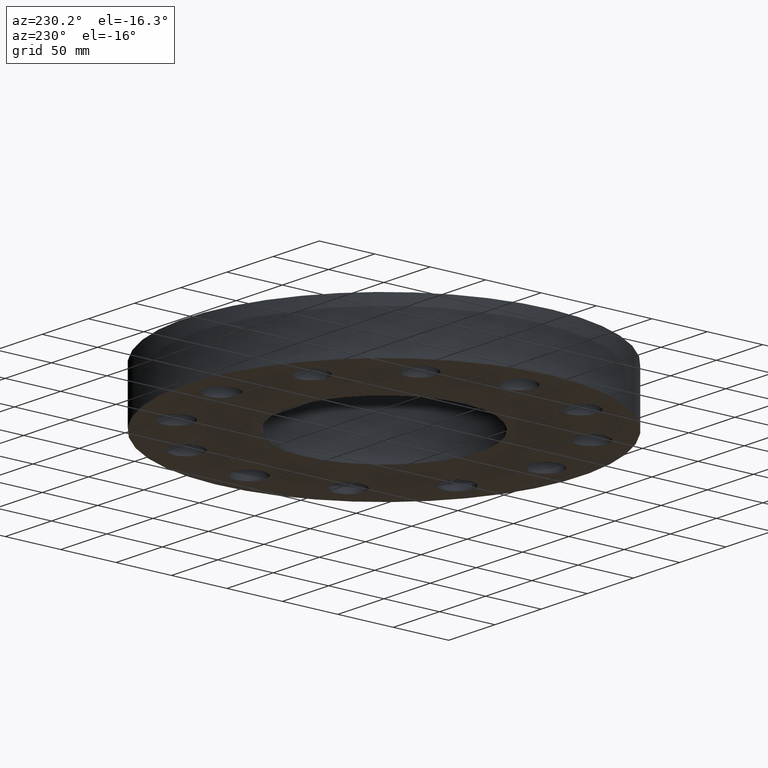
[diagram: clean part render]
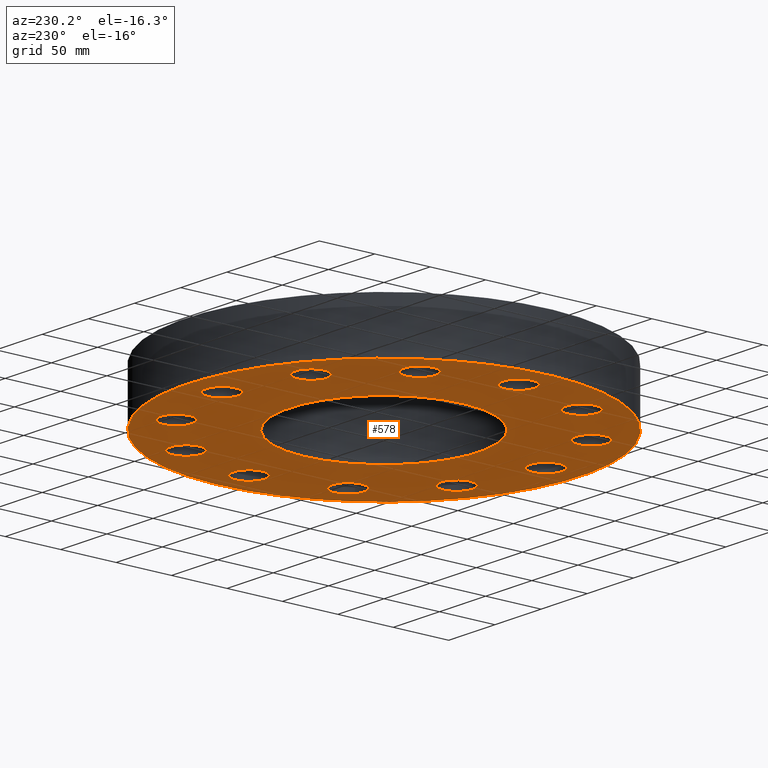
[diagram: same view with one face highlighted and labeled with its STEP entity id]
A machine part, auxiliary view. The second image highlights one B-rep face of the part: STEP entity #578.
In plain terms, the highlighted planar face has unit normal (0, 0, -1).
Its self-contained STEP definition (entity closure, byte-faithful):
#51=AXIS2_PLACEMENT_3D('Circle Axis2P3D',#49,#50,$) ;
#77=AXIS2_PLACEMENT_3D('Circle Axis2P3D',#75,#76,$) ;
#99=AXIS2_PLACEMENT_3D('Circle Axis2P3D',#97,#98,$) ;
#134=AXIS2_PLACEMENT_3D('Circle Axis2P3D',#132,#133,$) ;
#334=AXIS2_PLACEMENT_3D('Circle Axis2P3D',#332,#333,$) ;
#353=AXIS2_PLACEMENT_3D('Circle Axis2P3D',#351,#352,$) ;
#366=AXIS2_PLACEMENT_3D('Plane Axis2P3D',#363,#364,#365) ;
#382=AXIS2_PLACEMENT_3D('Circle Axis2P3D',#380,#381,$) ;
#391=AXIS2_PLACEMENT_3D('Circle Axis2P3D',#389,#390,$) ;
#400=AXIS2_PLACEMENT_3D('Circle Axis2P3D',#398,#399,$) ;
#409=AXIS2_PLACEMENT_3D('Circle Axis2P3D',#407,#408,$) ;
#418=AXIS2_PLACEMENT_3D('Circle Axis2P3D',#416,#417,$) ;
#427=AXIS2_PLACEMENT_3D('Circle Axis2P3D',#425,#426,$) ;
#436=AXIS2_PLACEMENT_3D('Circle Axis2P3D',#434,#435,$) ;
#445=AXIS2_PLACEMENT_3D('Circle Axis2P3D',#443,#444,$) ;
#454=AXIS2_PLACEMENT_3D('Circle Axis2P3D',#452,#453,$) ;
#463=AXIS2_PLACEMENT_3D('Circle Axis2P3D',#461,#462,$) ;
#472=AXIS2_PLACEMENT_3D('Circle Axis2P3D',#470,#471,$) ;
#481=AXIS2_PLACEMENT_3D('Circle Axis2P3D',#479,#480,$) ;
#490=AXIS2_PLACEMENT_3D('Circle Axis2P3D',#488,#489,$) ;
#499=AXIS2_PLACEMENT_3D('Circle Axis2P3D',#497,#498,$) ;
#508=AXIS2_PLACEMENT_3D('Circle Axis2P3D',#506,#507,$) ;
#517=AXIS2_PLACEMENT_3D('Circle Axis2P3D',#515,#516,$) ;
#526=AXIS2_PLACEMENT_3D('Circle Axis2P3D',#524,#525,$) ;
#535=AXIS2_PLACEMENT_3D('Circle Axis2P3D',#533,#534,$) ;
#544=AXIS2_PLACEMENT_3D('Circle Axis2P3D',#542,#543,$) ;
#553=AXIS2_PLACEMENT_3D('Circle Axis2P3D',#551,#552,$) ;
#562=AXIS2_PLACEMENT_3D('Circle Axis2P3D',#560,#561,$) ;
#571=AXIS2_PLACEMENT_3D('Circle Axis2P3D',#569,#570,$) ;
#44=CARTESIAN_POINT('Vertex',(5.25855376536,0.268478301619,0.)) ;
#49=CARTESIAN_POINT('Axis2P3D Location',(5.75000000002,0.,0.)) ;
#53=CARTESIAN_POINT('Vertex',(6.24144623468,-0.268478301619,0.)) ;
#75=CARTESIAN_POINT('Axis2P3D Location',(5.75000000002,0.,0.)) ;
#97=CARTESIAN_POINT('Axis2P3D Location',(0.,0.,8.39223703654E-016)) ;
#101=CARTESIAN_POINT('Vertex',(-3.35597877024,-6.14307793326,8.39223703654E-016)) ;
#103=CARTESIAN_POINT('Vertex',(3.35597877024,6.14307793326,8.39223703654E-016)) ;
#132=CARTESIAN_POINT('Axis2P3D Location',(0.,0.,8.39223703654E-016)) ;
#329=CARTESIAN_POINT('Vertex',(-1.61086980972,-2.94867740796,-9.23146074019E-015)) ;
#332=CARTESIAN_POINT('Axis2P3D Location',(0.,0.,-9.51120197474E-015)) ;
#336=CARTESIAN_POINT('Vertex',(1.61086980972,2.94867740796,-9.23146074019E-015)) ;
#351=CARTESIAN_POINT('Axis2P3D Location',(0.,0.,-9.51120197474E-015)) ;
#363=CARTESIAN_POINT('Axis2P3D Location',(0.,3.36000000001,0.)) ;
#380=CARTESIAN_POINT('Axis2P3D Location',(4.97964607178,-2.87500000001,0.)) ;
#384=CARTESIAN_POINT('Vertex',(4.68828029878,-2.39676785311,0.)) ;
#386=CARTESIAN_POINT('Vertex',(5.27101184478,-3.35323214691,0.)) ;
#389=CARTESIAN_POINT('Axis2P3D Location',(4.97964607178,-2.87500000001,0.)) ;
#398=CARTESIAN_POINT('Axis2P3D Location',(2.87500000001,-4.97964607178,0.)) ;
#402=CARTESIAN_POINT('Vertex',(2.86178591225,-4.41980199716,0.)) ;
#404=CARTESIAN_POINT('Vertex',(2.88821408777,-5.5394901464,0.)) ;
#407=CARTESIAN_POINT('Axis2P3D Location',(2.87500000001,-4.97964607178,0.)) ;
#416=CARTESIAN_POINT('Axis2P3D Location',(-1.81831802458E-015,-5.75000000002,0.)) ;
#420=CARTESIAN_POINT('Vertex',(0.268478301619,-5.25855376536,0.)) ;
#422=CARTESIAN_POINT('Vertex',(-0.268478301619,-6.24144623468,0.)) ;
#425=CARTESIAN_POINT('Axis2P3D Location',(-6.99353086378E-016,-5.75000000002,0.)) ;
#434=CARTESIAN_POINT('Axis2P3D Location',(-2.87500000001,-4.97964607178,0.)) ;
#438=CARTESIAN_POINT('Vertex',(-2.39676785311,-4.68828029878,0.)) ;
#440=CARTESIAN_POINT('Vertex',(-3.35323214691,-5.27101184478,-1.67844740731E-015)) ;
#443=CARTESIAN_POINT('Axis2P3D Location',(-2.87500000001,-4.97964607178,0.)) ;
#452=CARTESIAN_POINT('Axis2P3D Location',(-4.97964607178,-2.87500000001,0.)) ;
#456=CARTESIAN_POINT('Vertex',(-4.41980199716,-2.86178591225,0.)) ;
#458=CARTESIAN_POINT('Vertex',(-5.5394901464,-2.88821408777,0.)) ;
#461=CARTESIAN_POINT('Axis2P3D Location',(-4.97964607178,-2.87500000001,0.)) ;
#470=CARTESIAN_POINT('Axis2P3D Location',(-5.75000000002,-1.1189649382E-015,0.)) ;
#474=CARTESIAN_POINT('Vertex',(-5.25855376536,-0.268478301619,0.)) ;
#476=CARTESIAN_POINT('Vertex',(-6.24144623468,0.268478301619,0.)) ;
#479=CARTESIAN_POINT('Axis2P3D Location',(-5.75000000002,-5.59482469102E-016,0.)) ;
#488=CARTESIAN_POINT('Axis2P3D Location',(-4.97964607178,2.87500000001,0.)) ;
#492=CARTESIAN_POINT('Vertex',(-4.68828029878,2.39676785311,0.)) ;
#494=CARTESIAN_POINT('Vertex',(-5.27101184478,3.35323214691,0.)) ;
#497=CARTESIAN_POINT('Axis2P3D Location',(-4.97964607178,2.87500000001,0.)) ;
#506=CARTESIAN_POINT('Axis2P3D Location',(-2.87500000001,4.97964607178,0.)) ;
#510=CARTESIAN_POINT('Vertex',(-2.86178591225,4.41980199716,0.)) ;
#512=CARTESIAN_POINT('Vertex',(-2.88821408777,5.5394901464,0.)) ;
#515=CARTESIAN_POINT('Axis2P3D Location',(-2.87500000001,4.97964607178,0.)) ;
#524=CARTESIAN_POINT('Axis2P3D Location',(-6.2941777774E-016,5.75000000002,0.)) ;
#528=CARTESIAN_POINT('Vertex',(-0.268478301619,5.25855376536,0.)) ;
#530=CARTESIAN_POINT('Vertex',(0.268478301619,6.24144623468,0.)) ;
#533=CARTESIAN_POINT('Axis2P3D Location',(-1.60851209867E-015,5.75000000002,0.)) ;
#542=CARTESIAN_POINT('Axis2P3D Location',(2.87500000001,4.97964607178,0.)) ;
#546=CARTESIAN_POINT('Vertex',(2.39676785311,4.68828029878,0.)) ;
#548=CARTESIAN_POINT('Vertex',(3.35323214691,5.27101184478,0.)) ;
#551=CARTESIAN_POINT('Axis2P3D Location',(2.87500000001,4.97964607178,0.)) ;
#560=CARTESIAN_POINT('Axis2P3D Location',(4.97964607178,2.87500000001,0.)) ;
#564=CARTESIAN_POINT('Vertex',(4.41980199716,2.86178591225,0.)) ;
#566=CARTESIAN_POINT('Vertex',(5.5394901464,2.88821408777,0.)) ;
#569=CARTESIAN_POINT('Axis2P3D Location',(4.97964607178,2.87500000001,0.)) ;
#50=DIRECTION('Axis2P3D Direction',(0.,-0.,-0.0393700787402)) ;
#76=DIRECTION('Axis2P3D Direction',(0.,-0.,-0.0393700787402)) ;
#98=DIRECTION('Axis2P3D Direction',(0.,0.,-0.0393700787402)) ;
#133=DIRECTION('Axis2P3D Direction',(0.,0.,-0.0393700787402)) ;
#333=DIRECTION('Axis2P3D Direction',(0.,0.,-0.0393700787402)) ;
#352=DIRECTION('Axis2P3D Direction',(0.,0.,-0.0393700787402)) ;
#364=DIRECTION('Axis2P3D Direction',(0.,0.,-0.0393700787402)) ;
#365=DIRECTION('Axis2P3D XDirection',(0.0393700787402,0.,0.)) ;
#381=DIRECTION('Axis2P3D Direction',(0.,0.,-0.0393700787402)) ;
#390=DIRECTION('Axis2P3D Direction',(0.,0.,-0.0393700787402)) ;
#399=DIRECTION('Axis2P3D Direction',(0.,0.,-0.0393700787402)) ;
#408=DIRECTION('Axis2P3D Direction',(0.,0.,-0.0393700787402)) ;
#417=DIRECTION('Axis2P3D Direction',(0.,0.,-0.0393700787402)) ;
#426=DIRECTION('Axis2P3D Direction',(0.,0.,-0.0393700787402)) ;
#435=DIRECTION('Axis2P3D Direction',(0.,0.,-0.0393700787402)) ;
#444=DIRECTION('Axis2P3D Direction',(0.,0.,-0.0393700787402)) ;
#453=DIRECTION('Axis2P3D Direction',(0.,0.,-0.0393700787402)) ;
#462=DIRECTION('Axis2P3D Direction',(0.,0.,-0.0393700787402)) ;
#471=DIRECTION('Axis2P3D Direction',(0.,0.,-0.0393700787402)) ;
#480=DIRECTION('Axis2P3D Direction',(0.,0.,-0.0393700787402)) ;
#489=DIRECTION('Axis2P3D Direction',(0.,0.,-0.0393700787402)) ;
#498=DIRECTION('Axis2P3D Direction',(0.,0.,-0.0393700787402)) ;
#507=DIRECTION('Axis2P3D Direction',(0.,0.,-0.0393700787402)) ;
#516=DIRECTION('Axis2P3D Direction',(0.,0.,-0.0393700787402)) ;
#525=DIRECTION('Axis2P3D Direction',(0.,0.,-0.0393700787402)) ;
#534=DIRECTION('Axis2P3D Direction',(0.,0.,-0.0393700787402)) ;
#543=DIRECTION('Axis2P3D Direction',(0.,0.,-0.0393700787402)) ;
#552=DIRECTION('Axis2P3D Direction',(0.,0.,-0.0393700787402)) ;
#561=DIRECTION('Axis2P3D Direction',(0.,0.,-0.0393700787402)) ;
#570=DIRECTION('Axis2P3D Direction',(0.,0.,-0.0393700787402)) ;
#369=ORIENTED_EDGE('',*,*,#105,.T.) ;
#370=ORIENTED_EDGE('',*,*,#136,.T.) ;
#373=ORIENTED_EDGE('',*,*,#79,.F.) ;
#374=ORIENTED_EDGE('',*,*,#55,.F.) ;
#377=ORIENTED_EDGE('',*,*,#355,.F.) ;
#378=ORIENTED_EDGE('',*,*,#338,.F.) ;
#395=ORIENTED_EDGE('',*,*,#388,.F.) ;
#396=ORIENTED_EDGE('',*,*,#393,.F.) ;
#413=ORIENTED_EDGE('',*,*,#406,.F.) ;
#414=ORIENTED_EDGE('',*,*,#411,.F.) ;
#431=ORIENTED_EDGE('',*,*,#424,.F.) ;
#432=ORIENTED_EDGE('',*,*,#429,.F.) ;
#449=ORIENTED_EDGE('',*,*,#442,.F.) ;
#450=ORIENTED_EDGE('',*,*,#447,.F.) ;
#467=ORIENTED_EDGE('',*,*,#460,.F.) ;
#468=ORIENTED_EDGE('',*,*,#465,.F.) ;
#485=ORIENTED_EDGE('',*,*,#478,.F.) ;
#486=ORIENTED_EDGE('',*,*,#483,.F.) ;
#503=ORIENTED_EDGE('',*,*,#496,.F.) ;
#504=ORIENTED_EDGE('',*,*,#501,.F.) ;
#521=ORIENTED_EDGE('',*,*,#514,.F.) ;
#522=ORIENTED_EDGE('',*,*,#519,.F.) ;
#539=ORIENTED_EDGE('',*,*,#532,.F.) ;
#540=ORIENTED_EDGE('',*,*,#537,.F.) ;
#557=ORIENTED_EDGE('',*,*,#550,.F.) ;
#558=ORIENTED_EDGE('',*,*,#555,.F.) ;
#575=ORIENTED_EDGE('',*,*,#568,.F.) ;
#576=ORIENTED_EDGE('',*,*,#573,.F.) ;
#375=FACE_BOUND('',#372,.T.) ;
#379=FACE_BOUND('',#376,.T.) ;
#397=FACE_BOUND('',#394,.T.) ;
#415=FACE_BOUND('',#412,.T.) ;
#433=FACE_BOUND('',#430,.T.) ;
#451=FACE_BOUND('',#448,.T.) ;
#469=FACE_BOUND('',#466,.T.) ;
#487=FACE_BOUND('',#484,.T.) ;
#505=FACE_BOUND('',#502,.T.) ;
#523=FACE_BOUND('',#520,.T.) ;
#541=FACE_BOUND('',#538,.T.) ;
#559=FACE_BOUND('',#556,.T.) ;
#577=FACE_BOUND('',#574,.T.) ;
#578=ADVANCED_FACE('PartBody',(#371,#375,#379,#397,#415,#433,#451,#469,#487,#505,#523,#541,#559,#577),#367,.T.) ;
#52=CIRCLE('generated circle',#51,0.560000000002) ;
#78=CIRCLE('generated circle',#77,0.560000000002) ;
#100=CIRCLE('generated circle',#99,7.00000000003) ;
#135=CIRCLE('generated circle',#134,7.00000000003) ;
#335=CIRCLE('generated circle',#334,3.36000000001) ;
#354=CIRCLE('generated circle',#353,3.36000000001) ;
#383=CIRCLE('generated circle',#382,0.560000000002) ;
#392=CIRCLE('generated circle',#391,0.560000000002) ;
#401=CIRCLE('generated circle',#400,0.560000000002) ;
#410=CIRCLE('generated circle',#409,0.560000000002) ;
#419=CIRCLE('generated circle',#418,0.560000000002) ;
#428=CIRCLE('generated circle',#427,0.560000000002) ;
#437=CIRCLE('generated circle',#436,0.560000000002) ;
#446=CIRCLE('generated circle',#445,0.560000000002) ;
#455=CIRCLE('generated circle',#454,0.560000000002) ;
#464=CIRCLE('generated circle',#463,0.560000000002) ;
#473=CIRCLE('generated circle',#472,0.560000000002) ;
#482=CIRCLE('generated circle',#481,0.560000000002) ;
#491=CIRCLE('generated circle',#490,0.560000000002) ;
#500=CIRCLE('generated circle',#499,0.560000000002) ;
#509=CIRCLE('generated circle',#508,0.560000000002) ;
#518=CIRCLE('generated circle',#517,0.560000000002) ;
#527=CIRCLE('generated circle',#526,0.560000000002) ;
#536=CIRCLE('generated circle',#535,0.560000000002) ;
#545=CIRCLE('generated circle',#544,0.560000000002) ;
#554=CIRCLE('generated circle',#553,0.560000000002) ;
#563=CIRCLE('generated circle',#562,0.560000000002) ;
#572=CIRCLE('generated circle',#571,0.560000000002) ;
#55=EDGE_CURVE('',#45,#54,#52,.T.) ;
#79=EDGE_CURVE('',#54,#45,#78,.T.) ;
#105=EDGE_CURVE('',#102,#104,#100,.T.) ;
#136=EDGE_CURVE('',#104,#102,#135,.T.) ;
#338=EDGE_CURVE('',#330,#337,#335,.T.) ;
#355=EDGE_CURVE('',#337,#330,#354,.T.) ;
#388=EDGE_CURVE('',#385,#387,#383,.T.) ;
#393=EDGE_CURVE('',#387,#385,#392,.T.) ;
#406=EDGE_CURVE('',#403,#405,#401,.T.) ;
#411=EDGE_CURVE('',#405,#403,#410,.T.) ;
#424=EDGE_CURVE('',#421,#423,#419,.T.) ;
#429=EDGE_CURVE('',#423,#421,#428,.T.) ;
#442=EDGE_CURVE('',#439,#441,#437,.T.) ;
#447=EDGE_CURVE('',#441,#439,#446,.T.) ;
#460=EDGE_CURVE('',#457,#459,#455,.T.) ;
#465=EDGE_CURVE('',#459,#457,#464,.T.) ;
#478=EDGE_CURVE('',#475,#477,#473,.T.) ;
#483=EDGE_CURVE('',#477,#475,#482,.T.) ;
#496=EDGE_CURVE('',#493,#495,#491,.T.) ;
#501=EDGE_CURVE('',#495,#493,#500,.T.) ;
#514=EDGE_CURVE('',#511,#513,#509,.T.) ;
#519=EDGE_CURVE('',#513,#511,#518,.T.) ;
#532=EDGE_CURVE('',#529,#531,#527,.T.) ;
#537=EDGE_CURVE('',#531,#529,#536,.T.) ;
#550=EDGE_CURVE('',#547,#549,#545,.T.) ;
#555=EDGE_CURVE('',#549,#547,#554,.T.) ;
#568=EDGE_CURVE('',#565,#567,#563,.T.) ;
#573=EDGE_CURVE('',#567,#565,#572,.T.) ;
#368=EDGE_LOOP('',(#369,#370)) ;
#372=EDGE_LOOP('',(#373,#374)) ;
#376=EDGE_LOOP('',(#377,#378)) ;
#394=EDGE_LOOP('',(#395,#396)) ;
#412=EDGE_LOOP('',(#413,#414)) ;
#430=EDGE_LOOP('',(#431,#432)) ;
#448=EDGE_LOOP('',(#449,#450)) ;
#466=EDGE_LOOP('',(#467,#468)) ;
#484=EDGE_LOOP('',(#485,#486)) ;
#502=EDGE_LOOP('',(#503,#504)) ;
#520=EDGE_LOOP('',(#521,#522)) ;
#538=EDGE_LOOP('',(#539,#540)) ;
#556=EDGE_LOOP('',(#557,#558)) ;
#574=EDGE_LOOP('',(#575,#576)) ;
#371=FACE_OUTER_BOUND('',#368,.T.) ;
#367=PLANE('',#366) ;
#45=VERTEX_POINT('',#44) ;
#54=VERTEX_POINT('',#53) ;
#102=VERTEX_POINT('',#101) ;
#104=VERTEX_POINT('',#103) ;
#330=VERTEX_POINT('',#329) ;
#337=VERTEX_POINT('',#336) ;
#385=VERTEX_POINT('',#384) ;
#387=VERTEX_POINT('',#386) ;
#403=VERTEX_POINT('',#402) ;
#405=VERTEX_POINT('',#404) ;
#421=VERTEX_POINT('',#420) ;
#423=VERTEX_POINT('',#422) ;
#439=VERTEX_POINT('',#438) ;
#441=VERTEX_POINT('',#440) ;
#457=VERTEX_POINT('',#456) ;
#459=VERTEX_POINT('',#458) ;
#475=VERTEX_POINT('',#474) ;
#477=VERTEX_POINT('',#476) ;
#493=VERTEX_POINT('',#492) ;
#495=VERTEX_POINT('',#494) ;
#511=VERTEX_POINT('',#510) ;
#513=VERTEX_POINT('',#512) ;
#529=VERTEX_POINT('',#528) ;
#531=VERTEX_POINT('',#530) ;
#547=VERTEX_POINT('',#546) ;
#549=VERTEX_POINT('',#548) ;
#565=VERTEX_POINT('',#564) ;
#567=VERTEX_POINT('',#566) ;